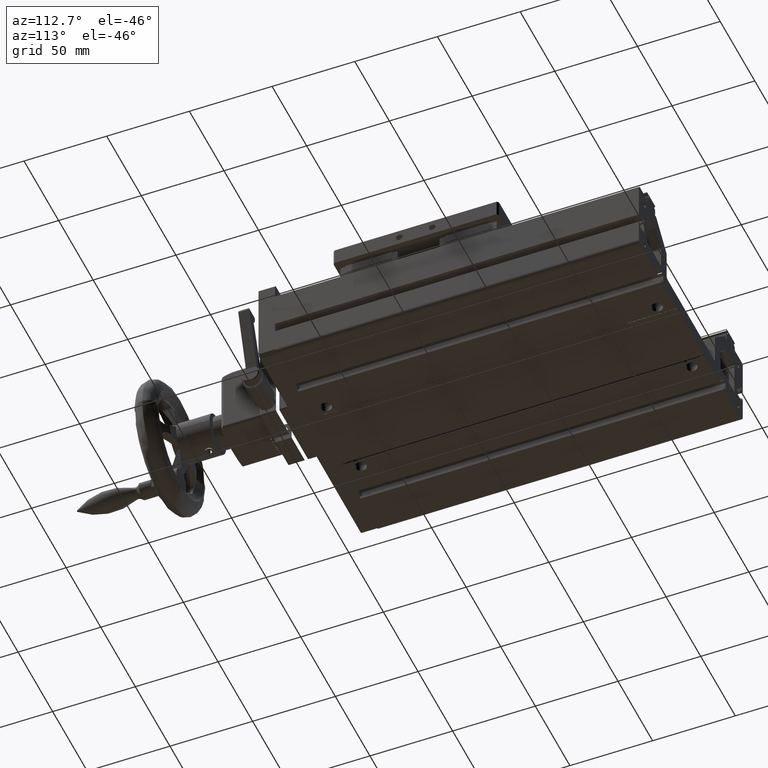
[diagram: clean part render]
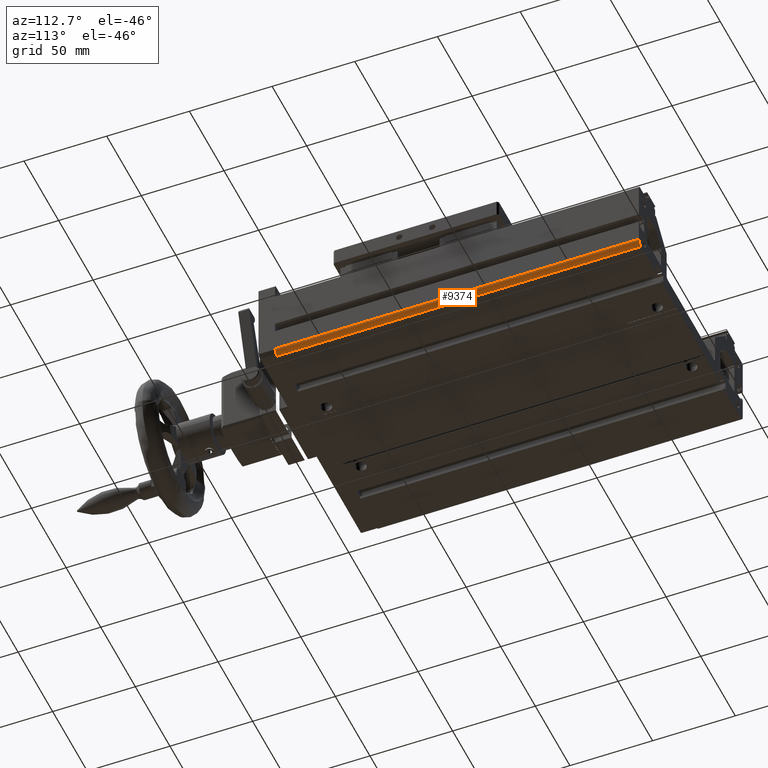
[diagram: same view with one face highlighted and labeled with its STEP entity id]
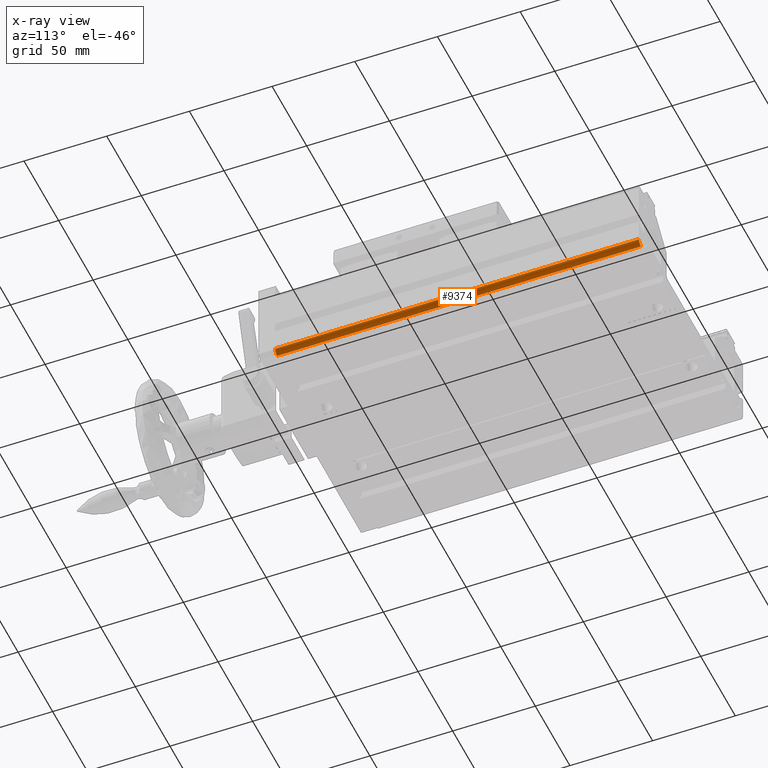
[diagram: x-ray of the same camera — body ghosted, the highlighted face saturated]
A machine part, auxiliary view. The second image highlights one B-rep face of the part: STEP entity #9374.
The next image is the same camera in x-ray: the body ghosted, the highlighted face saturated — about 0% of this face is hidden behind the body in this view.
In plain terms, the highlighted cylindrical surface (edge-blend (fillet) strip) has radius 3 mm, axis along (0, 1, -0).
Its self-contained STEP definition (entity closure, byte-faithful):
#125 = CYLINDRICAL_SURFACE ( 'NONE', #23733, 3.000000000000058176 ) ;
#2125 = ORIENTED_EDGE ( 'NONE', *, *, #18983, .T. ) ;
#3517 = DIRECTION ( 'NONE',  ( 3.491481338843133355E-15, 1.000000000000000000, -3.657132581846951845E-29 ) ) ;
#4884 = CARTESIAN_POINT ( 'NONE',  ( 47.17352052019946029, -133.0472645979090487, -19.99999999999957367 ) ) ;
#5122 = DIRECTION ( 'NONE',  ( 3.491481338843133355E-15, 1.000000000000000000, -3.657132581846951845E-29 ) ) ;
#6189 = ORIENTED_EDGE ( 'NONE', *, *, #28637, .F. ) ;
#8357 = EDGE_LOOP ( 'NONE', ( #32144, #6189, #2125, #33075 ) ) ;
#8655 = VECTOR ( 'NONE', #3517, 1000.000000000000000 ) ;
#9181 = AXIS2_PLACEMENT_3D ( 'NONE', #14418, #16801, #25527 ) ;
#9374 = ADVANCED_FACE ( 'NONE', ( #28566 ), #125, .T. ) ;
#12272 = VERTEX_POINT ( 'NONE', #24885 ) ;
#14131 = VERTEX_POINT ( 'NONE', #4884 ) ;
#14418 = CARTESIAN_POINT ( 'NONE',  ( 44.17352052019934661, -133.0472645979090487, -19.99999999999957367 ) ) ;
#15539 = LINE ( 'NONE', #30088, #30008 ) ;
#16801 = DIRECTION ( 'NONE',  ( 3.491481338843133355E-15, 1.000000000000000000, -3.657132581846951845E-29 ) ) ;
#16828 = CARTESIAN_POINT ( 'NONE',  ( 44.17352052019884923, -133.0472645979090487, -22.99999999999968736 ) ) ;
#18983 = EDGE_CURVE ( 'NONE', #14131, #27409, #24928, .T. ) ;
#19427 = DIRECTION ( 'NONE',  ( 3.491481338843133355E-15, 1.000000000000000000, -3.657132581846951845E-29 ) ) ;
#21190 = AXIS2_PLACEMENT_3D ( 'NONE', #24909, #19427, #24178 ) ;
#23527 = CIRCLE ( 'NONE', #21190, 3.000000000000058176 ) ;
#23611 = CARTESIAN_POINT ( 'NONE',  ( 44.17352052019884923, -133.0472645979090487, -22.99999999999968736 ) ) ;
#23733 = AXIS2_PLACEMENT_3D ( 'NONE', #26341, #30914, #33800 ) ;
#24178 = DIRECTION ( 'NONE',  ( 4.625929269271396181E-15, 0.000000000000000000, 1.000000000000000000 ) ) ;
#24885 = CARTESIAN_POINT ( 'NONE',  ( 47.17352052020024189, 86.95273540209095131, -19.99999999999957367 ) ) ;
#24909 = CARTESIAN_POINT ( 'NONE',  ( 44.17352052020012820, 86.95273540209095131, -19.99999999999957367 ) ) ;
#24928 = CIRCLE ( 'NONE', #9181, 3.000000000000058176 ) ;
#25064 = EDGE_CURVE ( 'NONE', #12272, #25115, #23527, .T. ) ;
#25115 = VERTEX_POINT ( 'NONE', #30845 ) ;
#25527 = DIRECTION ( 'NONE',  ( 4.625929269271396181E-15, 0.000000000000000000, 1.000000000000000000 ) ) ;
#26341 = CARTESIAN_POINT ( 'NONE',  ( 44.17352052019934661, -133.0472645979090487, -19.99999999999957367 ) ) ;
#27409 = VERTEX_POINT ( 'NONE', #16828 ) ;
#28566 = FACE_OUTER_BOUND ( 'NONE', #8357, .T. ) ;
#28637 = EDGE_CURVE ( 'NONE', #14131, #12272, #15539, .T. ) ;
#29021 = LINE ( 'NONE', #23611, #8655 ) ;
#30008 = VECTOR ( 'NONE', #5122, 1000.000000000000000 ) ;
#30088 = CARTESIAN_POINT ( 'NONE',  ( 47.17352052019946029, -133.0472645979090487, -19.99999999999957367 ) ) ;
#30845 = CARTESIAN_POINT ( 'NONE',  ( 44.17352052019963082, 86.95273540209095131, -22.99999999999968736 ) ) ;
#30914 = DIRECTION ( 'NONE',  ( 3.491481338843133355E-15, 1.000000000000000000, -3.657132581846951845E-29 ) ) ;
#32144 = ORIENTED_EDGE ( 'NONE', *, *, #25064, .F. ) ;
#33075 = ORIENTED_EDGE ( 'NONE', *, *, #34915, .T. ) ;
#33800 = DIRECTION ( 'NONE',  ( 4.625929269271396181E-15, 0.000000000000000000, 1.000000000000000000 ) ) ;
#34915 = EDGE_CURVE ( 'NONE', #27409, #25115, #29021, .T. ) ;